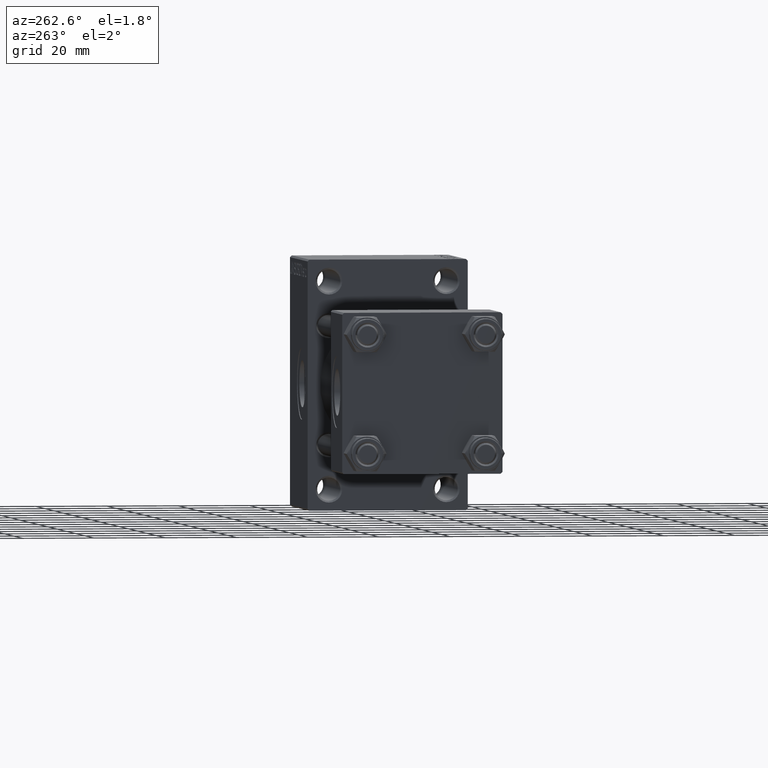
[diagram: clean part render]
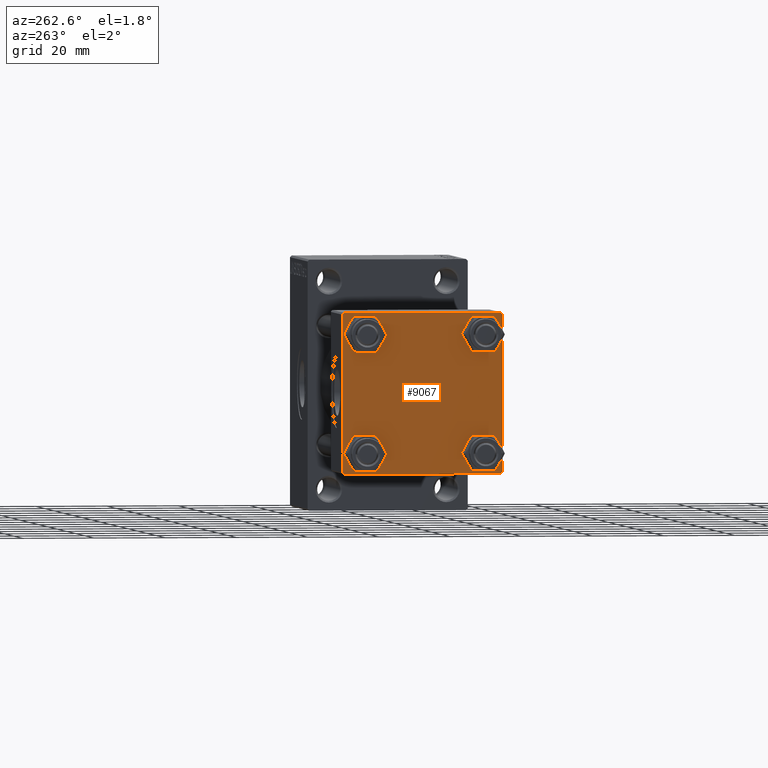
[diagram: same view with one face highlighted and labeled with its STEP entity id]
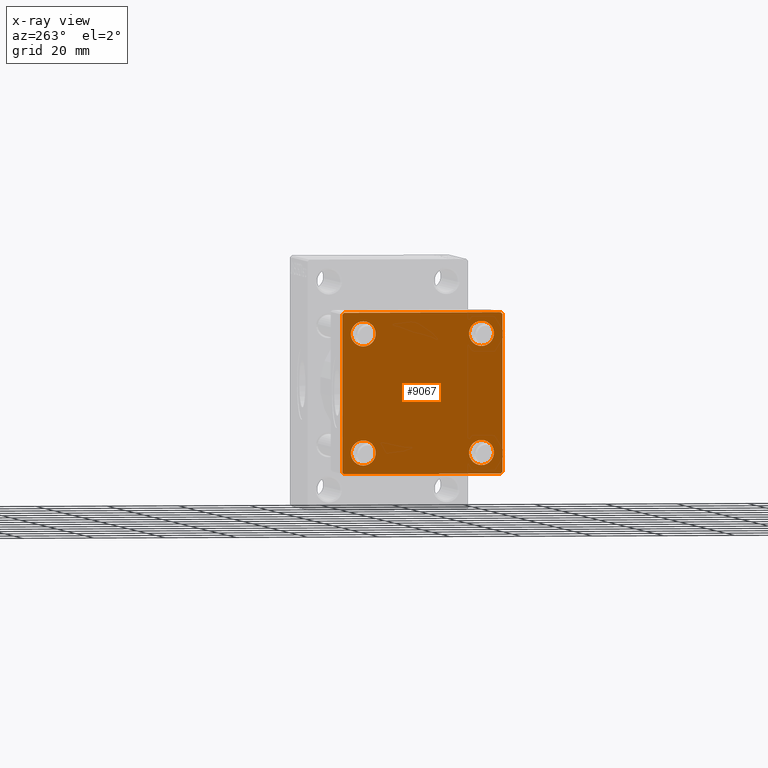
[diagram: x-ray of the same camera — body ghosted, the highlighted face saturated]
A machine part, auxiliary view. The second image highlights one B-rep face of the part: STEP entity #9067.
The next image is the same camera in x-ray: the body ghosted, the highlighted face saturated — about 0% of this face is hidden behind the body in this view.
In plain terms, the highlighted planar face has unit normal (-1, 0, 0).
Its self-contained STEP definition (entity closure, byte-faithful):
#33 = CARTESIAN_POINT ( 'NONE',  ( 0.000000000000000000, 22.50000000000000000, 22.50000000000000355 ) ) ;
#57 = DIRECTION ( 'NONE',  ( 1.000000000000000000, -0.000000000000000000, 0.000000000000000000 ) ) ;
#78 = VERTEX_POINT ( 'NONE', #40299 ) ;
#941 = EDGE_CURVE ( 'NONE', #16599, #42157, #3758, .T. ) ;
#1263 = CARTESIAN_POINT ( 'NONE',  ( 0.000000000000000000, 16.59999999999999787, 16.60000000000000497 ) ) ;
#1430 = CARTESIAN_POINT ( 'NONE',  ( 0.000000000000000000, 0.000000000000000000, 0.000000000000000000 ) ) ;
#1871 = CARTESIAN_POINT ( 'NONE',  ( 0.000000000000000000, -16.59999999999999076, -13.10000000000001030 ) ) ;
#2088 = EDGE_CURVE ( 'NONE', #23124, #20180, #12587, .T. ) ;
#2161 = VERTEX_POINT ( 'NONE', #47172 ) ;
#2560 = CIRCLE ( 'NONE', #7943, 3.499999999999996003 ) ;
#2763 = ORIENTED_EDGE ( 'NONE', *, *, #941, .F. ) ;
#2847 = CARTESIAN_POINT ( 'NONE',  ( 0.000000000000000000, -21.99999999999997158, -22.50000000000000711 ) ) ;
#3036 = CARTESIAN_POINT ( 'NONE',  ( 0.000000000000000000, -22.50000000000000000, 22.00000000000000000 ) ) ;
#3436 = EDGE_CURVE ( 'NONE', #8086, #21439, #5727, .T. ) ;
#3490 = CARTESIAN_POINT ( 'NONE',  ( 0.000000000000000000, 22.50000000000000000, 21.99999999999999645 ) ) ;
#3758 = LINE ( 'NONE', #44160, #9500 ) ;
#3884 = ORIENTED_EDGE ( 'NONE', *, *, #16681, .T. ) ;
#3934 = VECTOR ( 'NONE', #17024, 1000.000000000000000 ) ;
#4783 = DIRECTION ( 'NONE',  ( 0.000000000000000000, 0.7071067811865474617, -0.7071067811865474617 ) ) ;
#4813 = DIRECTION ( 'NONE',  ( 0.000000000000000000, 0.000000000000000000, 1.000000000000000000 ) ) ;
#4997 = DIRECTION ( 'NONE',  ( -0.000000000000000000, 0.7071067811865525687, 0.7071067811865425767 ) ) ;
#5051 = CARTESIAN_POINT ( 'NONE',  ( 0.000000000000000000, 22.50000000000000000, 22.50000000000000355 ) ) ;
#5082 = VECTOR ( 'NONE', #4783, 1000.000000000000114 ) ;
#5267 = FACE_BOUND ( 'NONE', #36805, .T. ) ;
#5695 = AXIS2_PLACEMENT_3D ( 'NONE', #40013, #29201, #33296 ) ;
#5727 = CIRCLE ( 'NONE', #20325, 3.499999999999996003 ) ;
#6405 = LINE ( 'NONE', #21317, #29837 ) ;
#7480 = CARTESIAN_POINT ( 'NONE',  ( 0.000000000000000000, 16.59999999999999787, -16.60000000000000497 ) ) ;
#7943 = AXIS2_PLACEMENT_3D ( 'NONE', #35738, #38632, #27810 ) ;
#8086 = VERTEX_POINT ( 'NONE', #44245 ) ;
#8489 = ORIENTED_EDGE ( 'NONE', *, *, #25723, .T. ) ;
#8739 = VECTOR ( 'NONE', #19729, 1000.000000000000000 ) ;
#8976 = VERTEX_POINT ( 'NONE', #37278 ) ;
#9067 = ADVANCED_FACE ( 'NONE', ( #23079, #26689, #5267, #45677, #30537 ), #27397, .T. ) ;
#9135 = VERTEX_POINT ( 'NONE', #27634 ) ;
#9500 = VECTOR ( 'NONE', #21800, 1000.000000000000000 ) ;
#9615 = VERTEX_POINT ( 'NONE', #39341 ) ;
#9653 = CARTESIAN_POINT ( 'NONE',  ( 0.000000000000000000, -16.59999999999999076, 13.10000000000001030 ) ) ;
#9848 = AXIS2_PLACEMENT_3D ( 'NONE', #7480, #22391, #19029 ) ;
#10143 = VERTEX_POINT ( 'NONE', #9653 ) ;
#10491 = DIRECTION ( 'NONE',  ( 0.000000000000000000, -1.000000000000000000, -2.312964634635742957E-16 ) ) ;
#10629 = VECTOR ( 'NONE', #44522, 1000.000000000000000 ) ;
#11030 = ORIENTED_EDGE ( 'NONE', *, *, #34300, .T. ) ;
#11354 = EDGE_CURVE ( 'NONE', #9615, #33459, #26913, .T. ) ;
#12071 = CIRCLE ( 'NONE', #22834, 3.499999999999996003 ) ;
#12323 = EDGE_CURVE ( 'NONE', #9135, #78, #19745, .T. ) ;
#12348 = CARTESIAN_POINT ( 'NONE',  ( 0.000000000000000000, 22.50000000000000000, -21.99999999999996803 ) ) ;
#12580 = CARTESIAN_POINT ( 'NONE',  ( 0.000000000000000000, 16.59999999999999787, -20.10000000000000142 ) ) ;
#12587 = CIRCLE ( 'NONE', #5695, 3.499999999999996003 ) ;
#13247 = CARTESIAN_POINT ( 'NONE',  ( 0.000000000000000000, -16.59999999999999076, -20.10000000000000497 ) ) ;
#13316 = EDGE_CURVE ( 'NONE', #47057, #10143, #12071, .T. ) ;
#13685 = EDGE_CURVE ( 'NONE', #16599, #8976, #20563, .T. ) ;
#13813 = ORIENTED_EDGE ( 'NONE', *, *, #16231, .T. ) ;
#14167 = ORIENTED_EDGE ( 'NONE', *, *, #32809, .F. ) ;
#15373 = ORIENTED_EDGE ( 'NONE', *, *, #13685, .T. ) ;
#15383 = EDGE_CURVE ( 'NONE', #21439, #8086, #47474, .T. ) ;
#16231 = EDGE_CURVE ( 'NONE', #33459, #18078, #26487, .T. ) ;
#16599 = VERTEX_POINT ( 'NONE', #3036 ) ;
#16681 = EDGE_CURVE ( 'NONE', #2161, #18663, #6405, .T. ) ;
#17024 = DIRECTION ( 'NONE',  ( 0.000000000000000000, -0.7071067811865426878, 0.7071067811865524577 ) ) ;
#18078 = VERTEX_POINT ( 'NONE', #12348 ) ;
#18588 = DIRECTION ( 'NONE',  ( 0.000000000000000000, 0.000000000000000000, 1.000000000000000000 ) ) ;
#18663 = VERTEX_POINT ( 'NONE', #2847 ) ;
#19029 = DIRECTION ( 'NONE',  ( 0.000000000000000000, 0.000000000000000000, 1.000000000000000000 ) ) ;
#19271 = DIRECTION ( 'NONE',  ( 1.000000000000000000, -0.000000000000000000, 0.000000000000000000 ) ) ;
#19729 = DIRECTION ( 'NONE',  ( 0.000000000000000000, -1.000000000000000000, -7.709882115452476934E-17 ) ) ;
#19745 = CIRCLE ( 'NONE', #25860, 3.499999999999996003 ) ;
#19855 = EDGE_CURVE ( 'NONE', #20180, #23124, #20625, .T. ) ;
#19943 = DIRECTION ( 'NONE',  ( -0.000000000000000000, -0.7071067811865426878, -0.7071067811865524577 ) ) ;
#20134 = VECTOR ( 'NONE', #19943, 1000.000000000000000 ) ;
#20180 = VERTEX_POINT ( 'NONE', #1871 ) ;
#20325 = AXIS2_PLACEMENT_3D ( 'NONE', #37547, #19271, #44060 ) ;
#20563 = LINE ( 'NONE', #34104, #34395 ) ;
#20625 = CIRCLE ( 'NONE', #47514, 3.499999999999996003 ) ;
#20980 = CIRCLE ( 'NONE', #27881, 3.499999999999996003 ) ;
#21317 = CARTESIAN_POINT ( 'NONE',  ( 0.000000000000000000, 22.50000000000000000, -22.49999999999999645 ) ) ;
#21439 = VERTEX_POINT ( 'NONE', #12580 ) ;
#21800 = DIRECTION ( 'NONE',  ( 0.000000000000000000, 0.000000000000000000, -1.000000000000000000 ) ) ;
#22144 = EDGE_LOOP ( 'NONE', ( #27964, #11030 ) ) ;
#22391 = DIRECTION ( 'NONE',  ( 1.000000000000000000, -0.000000000000000000, 0.000000000000000000 ) ) ;
#22664 = DIRECTION ( 'NONE',  ( 0.000000000000000000, 0.000000000000000000, 1.000000000000000000 ) ) ;
#22834 = AXIS2_PLACEMENT_3D ( 'NONE', #26474, #34162, #4813 ) ;
#23079 = FACE_BOUND ( 'NONE', #33593, .T. ) ;
#23115 = CARTESIAN_POINT ( 'NONE',  ( 0.000000000000000000, -22.50000000000000000, -21.99999999999997158 ) ) ;
#23124 = VERTEX_POINT ( 'NONE', #13247 ) ;
#23780 = LINE ( 'NONE', #42060, #20134 ) ;
#25334 = DIRECTION ( 'NONE',  ( 1.000000000000000000, -0.000000000000000000, 0.000000000000000000 ) ) ;
#25578 = DIRECTION ( 'NONE',  ( 0.000000000000000000, 0.000000000000000000, 1.000000000000000000 ) ) ;
#25723 = EDGE_CURVE ( 'NONE', #18663, #42157, #28328, .T. ) ;
#25860 = AXIS2_PLACEMENT_3D ( 'NONE', #1263, #40472, #18588 ) ;
#25901 = ORIENTED_EDGE ( 'NONE', *, *, #13316, .T. ) ;
#26052 = CARTESIAN_POINT ( 'NONE',  ( 0.000000000000000000, -16.59999999999999076, -16.60000000000000853 ) ) ;
#26474 = CARTESIAN_POINT ( 'NONE',  ( 0.000000000000000000, -16.59999999999999076, 16.60000000000000853 ) ) ;
#26487 = LINE ( 'NONE', #33, #10629 ) ;
#26689 = FACE_BOUND ( 'NONE', #32871, .T. ) ;
#26913 = LINE ( 'NONE', #37728, #5082 ) ;
#27397 = PLANE ( 'NONE',  #28928 ) ;
#27634 = CARTESIAN_POINT ( 'NONE',  ( 0.000000000000000000, 16.59999999999999787, 20.10000000000000142 ) ) ;
#27810 = DIRECTION ( 'NONE',  ( 0.000000000000000000, 0.000000000000000000, 1.000000000000000000 ) ) ;
#27881 = AXIS2_PLACEMENT_3D ( 'NONE', #37092, #57, #22664 ) ;
#27964 = ORIENTED_EDGE ( 'NONE', *, *, #12323, .T. ) ;
#28264 = ORIENTED_EDGE ( 'NONE', *, *, #11354, .T. ) ;
#28328 = LINE ( 'NONE', #35069, #3934 ) ;
#28928 = AXIS2_PLACEMENT_3D ( 'NONE', #1430, #45440, #38690 ) ;
#29201 = DIRECTION ( 'NONE',  ( 1.000000000000000000, -0.000000000000000000, 0.000000000000000000 ) ) ;
#29602 = ORIENTED_EDGE ( 'NONE', *, *, #3436, .T. ) ;
#29837 = VECTOR ( 'NONE', #10491, 1000.000000000000000 ) ;
#30537 = FACE_OUTER_BOUND ( 'NONE', #45951, .T. ) ;
#32809 = EDGE_CURVE ( 'NONE', #9615, #8976, #42789, .T. ) ;
#32871 = EDGE_LOOP ( 'NONE', ( #40958, #41796 ) ) ;
#33296 = DIRECTION ( 'NONE',  ( 0.000000000000000000, 0.000000000000000000, 1.000000000000000000 ) ) ;
#33459 = VERTEX_POINT ( 'NONE', #3490 ) ;
#33593 = EDGE_LOOP ( 'NONE', ( #25901, #36842 ) ) ;
#34104 = CARTESIAN_POINT ( 'NONE',  ( -0.000000000000000000, -22.24999999999984013, 22.25000000000015277 ) ) ;
#34162 = DIRECTION ( 'NONE',  ( 1.000000000000000000, -0.000000000000000000, 0.000000000000000000 ) ) ;
#34300 = EDGE_CURVE ( 'NONE', #78, #9135, #2560, .T. ) ;
#34395 = VECTOR ( 'NONE', #4997, 999.9999999999998863 ) ;
#35069 = CARTESIAN_POINT ( 'NONE',  ( 0.000000000000000000, -22.25000000000014566, -22.24999999999984013 ) ) ;
#35695 = ORIENTED_EDGE ( 'NONE', *, *, #43443, .T. ) ;
#35738 = CARTESIAN_POINT ( 'NONE',  ( 0.000000000000000000, 16.59999999999999787, 16.60000000000000497 ) ) ;
#36159 = ORIENTED_EDGE ( 'NONE', *, *, #15383, .T. ) ;
#36805 = EDGE_LOOP ( 'NONE', ( #29602, #36159 ) ) ;
#36842 = ORIENTED_EDGE ( 'NONE', *, *, #45337, .T. ) ;
#37092 = CARTESIAN_POINT ( 'NONE',  ( 0.000000000000000000, -16.59999999999999076, 16.60000000000000853 ) ) ;
#37278 = CARTESIAN_POINT ( 'NONE',  ( 0.000000000000000000, -21.99999999999997868, 22.50000000000000000 ) ) ;
#37547 = CARTESIAN_POINT ( 'NONE',  ( 0.000000000000000000, 16.59999999999999787, -16.60000000000000497 ) ) ;
#37728 = CARTESIAN_POINT ( 'NONE',  ( 0.000000000000000000, 22.24999999999999645, 22.24999999999999645 ) ) ;
#38632 = DIRECTION ( 'NONE',  ( 1.000000000000000000, -0.000000000000000000, 0.000000000000000000 ) ) ;
#38690 = DIRECTION ( 'NONE',  ( -0.000000000000000000, 0.000000000000000000, 1.000000000000000000 ) ) ;
#39341 = CARTESIAN_POINT ( 'NONE',  ( 0.000000000000000000, 21.99999999999999289, 22.50000000000000355 ) ) ;
#40013 = CARTESIAN_POINT ( 'NONE',  ( 0.000000000000000000, -16.59999999999999076, -16.60000000000000853 ) ) ;
#40299 = CARTESIAN_POINT ( 'NONE',  ( 0.000000000000000000, 16.59999999999999787, 13.10000000000000675 ) ) ;
#40472 = DIRECTION ( 'NONE',  ( 1.000000000000000000, -0.000000000000000000, 0.000000000000000000 ) ) ;
#40958 = ORIENTED_EDGE ( 'NONE', *, *, #19855, .T. ) ;
#41796 = ORIENTED_EDGE ( 'NONE', *, *, #2088, .T. ) ;
#42060 = CARTESIAN_POINT ( 'NONE',  ( 0.000000000000000000, 22.25000000000014566, -22.24999999999984013 ) ) ;
#42157 = VERTEX_POINT ( 'NONE', #23115 ) ;
#42789 = LINE ( 'NONE', #5051, #8739 ) ;
#43443 = EDGE_CURVE ( 'NONE', #18078, #2161, #23780, .T. ) ;
#44060 = DIRECTION ( 'NONE',  ( 0.000000000000000000, 0.000000000000000000, 1.000000000000000000 ) ) ;
#44160 = CARTESIAN_POINT ( 'NONE',  ( 0.000000000000000000, -22.50000000000000000, 22.50000000000000000 ) ) ;
#44245 = CARTESIAN_POINT ( 'NONE',  ( 0.000000000000000000, 16.59999999999999787, -13.10000000000000675 ) ) ;
#44522 = DIRECTION ( 'NONE',  ( 0.000000000000000000, 0.000000000000000000, -1.000000000000000000 ) ) ;
#45337 = EDGE_CURVE ( 'NONE', #10143, #47057, #20980, .T. ) ;
#45440 = DIRECTION ( 'NONE',  ( -1.000000000000000000, 0.000000000000000000, -0.000000000000000000 ) ) ;
#45677 = FACE_BOUND ( 'NONE', #22144, .T. ) ;
#45951 = EDGE_LOOP ( 'NONE', ( #13813, #35695, #3884, #8489, #2763, #15373, #14167, #28264 ) ) ;
#47057 = VERTEX_POINT ( 'NONE', #47430 ) ;
#47172 = CARTESIAN_POINT ( 'NONE',  ( 0.000000000000000000, 21.99999999999999289, -22.49999999999999645 ) ) ;
#47430 = CARTESIAN_POINT ( 'NONE',  ( 0.000000000000000000, -16.59999999999999076, 20.10000000000000853 ) ) ;
#47474 = CIRCLE ( 'NONE', #9848, 3.499999999999996003 ) ;
#47514 = AXIS2_PLACEMENT_3D ( 'NONE', #26052, #25334, #25578 ) ;